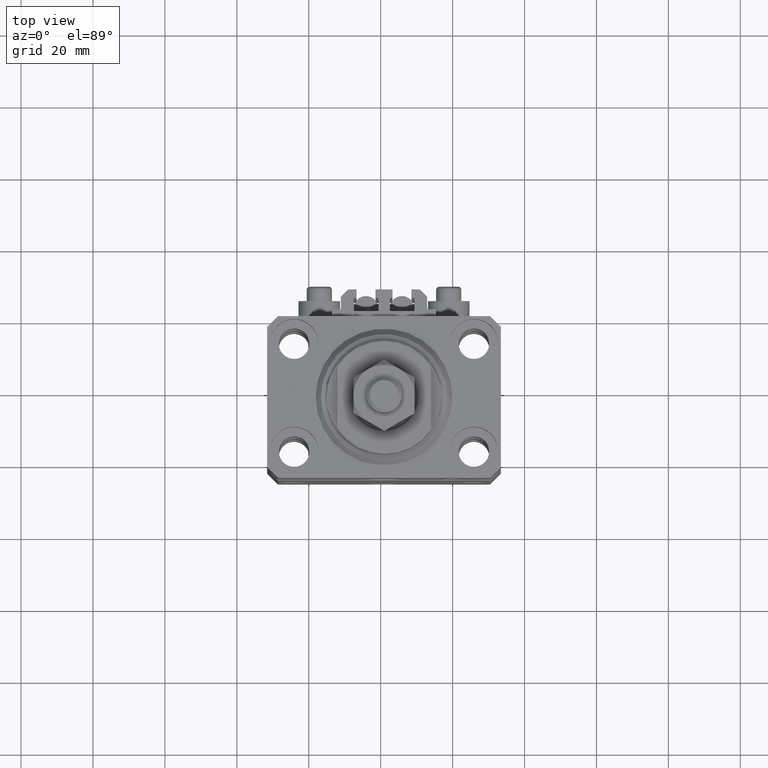
[diagram: clean part render]
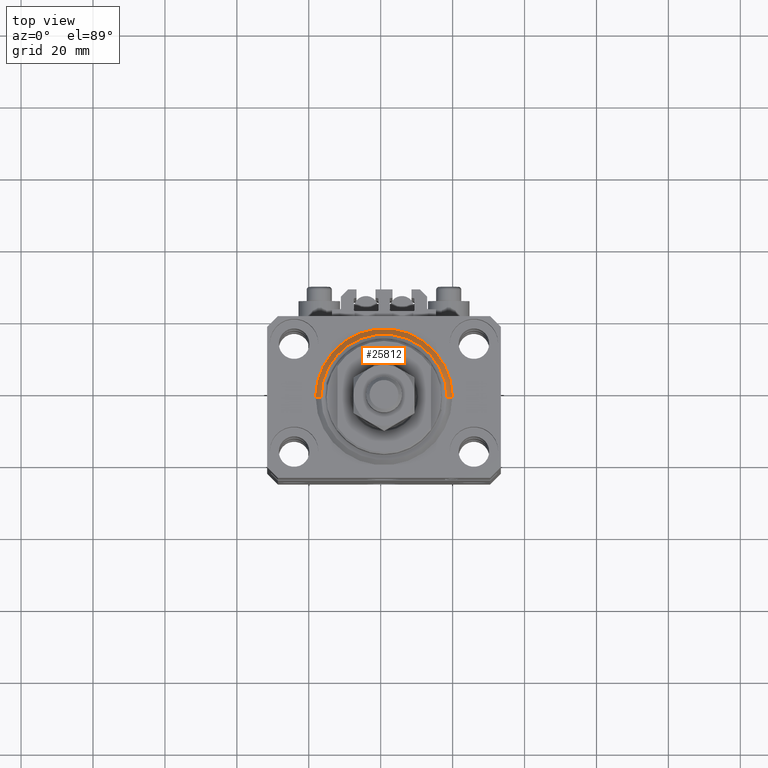
[diagram: same view with one face highlighted and labeled with its STEP entity id]
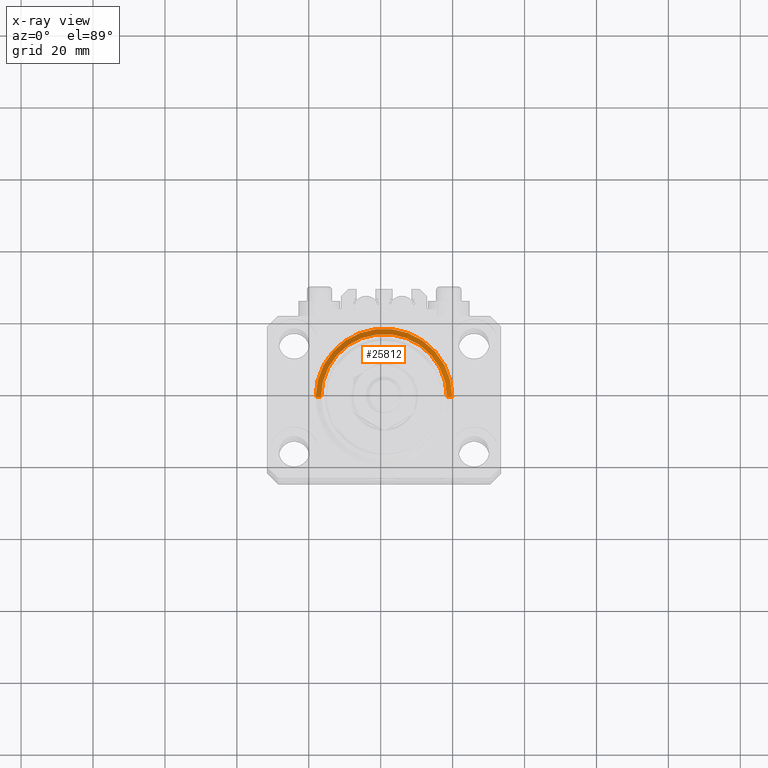
[diagram: x-ray of the same camera — body ghosted, the highlighted face saturated]
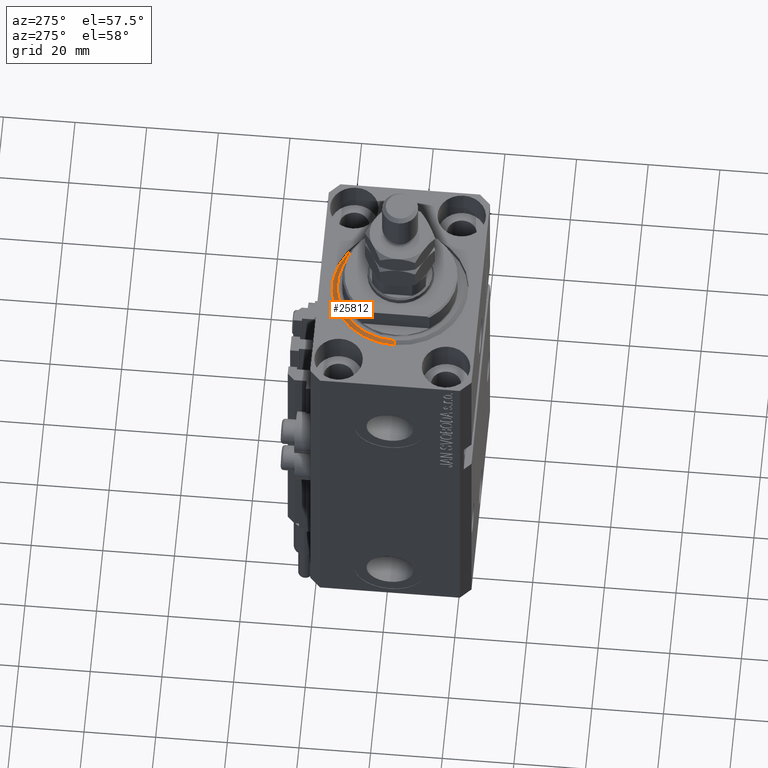
[diagram: same view with one face highlighted and labeled with its STEP entity id]
A machine part, top view. The second image highlights one B-rep face of the part: STEP entity #25812.
The next image is the same camera in x-ray: the body ghosted, the highlighted face saturated — about 0% of this face is hidden behind the body in this view.
A second angle (auxiliary view) of the same face is appended — the face is thin or edge-on in the first view.
In plain terms, the highlighted conical surface has half-angle 45 deg.
Its self-contained STEP definition (entity closure, byte-faithful):
#518 = VECTOR ( 'NONE', #16457, 1000.000000000000000 ) ;
#594 = CARTESIAN_POINT ( 'NONE',  ( -19.00000000000000000, 2.326828918379970970E-15, 1.500000000000004885 ) ) ;
#3260 = VERTEX_POINT ( 'NONE', #37180 ) ;
#4436 = CARTESIAN_POINT ( 'NONE',  ( 19.00000000000000000, 2.326828918379970970E-15, 1.500000000000004885 ) ) ;
#8391 = AXIS2_PLACEMENT_3D ( 'NONE', #11189, #39083, #47013 ) ;
#9324 = CARTESIAN_POINT ( 'NONE',  ( 19.00000000000000000, 0.000000000000000000, 1.500000000000004885 ) ) ;
#9595 = DIRECTION ( 'NONE',  ( 1.000000000000000000, 0.000000000000000000, 0.000000000000000000 ) ) ;
#11189 = CARTESIAN_POINT ( 'NONE',  ( 0.000000000000000000, 0.000000000000000000, 1.500000000000004885 ) ) ;
#11846 = ORIENTED_EDGE ( 'NONE', *, *, #19573, .F. ) ;
#12131 = LINE ( 'NONE', #594, #518 ) ;
#13442 = CARTESIAN_POINT ( 'NONE',  ( 0.000000000000000000, 0.000000000000000000, 1.500000000000004885 ) ) ;
#14954 = AXIS2_PLACEMENT_3D ( 'NONE', #26362, #46072, #37621 ) ;
#14989 = AXIS2_PLACEMENT_3D ( 'NONE', #13442, #47756, #9595 ) ;
#16457 = DIRECTION ( 'NONE',  ( -0.7071067811865483499, 8.659560562354943952E-17, 0.7071067811865467956 ) ) ;
#18127 = VECTOR ( 'NONE', #28768, 1000.000000000000000 ) ;
#18195 = EDGE_CURVE ( 'NONE', #29699, #23301, #12131, .T. ) ;
#18201 = CIRCLE ( 'NONE', #14954, 17.49999999999999289 ) ;
#19573 = EDGE_CURVE ( 'NONE', #3260, #47022, #40294, .T. ) ;
#20615 = CARTESIAN_POINT ( 'NONE',  ( -17.49999999999999289, 2.234980408443919215E-15, 0.000000000000000000 ) ) ;
#23301 = VERTEX_POINT ( 'NONE', #35449 ) ;
#24791 = EDGE_CURVE ( 'NONE', #47022, #23301, #27184, .T. ) ;
#25248 = EDGE_CURVE ( 'NONE', #29699, #3260, #18201, .T. ) ;
#25812 = ADVANCED_FACE ( 'NONE', ( #48503 ), #46036, .T. ) ;
#26059 = EDGE_LOOP ( 'NONE', ( #44199, #28693, #27050, #11846 ) ) ;
#26362 = CARTESIAN_POINT ( 'NONE',  ( 0.000000000000000000, 0.000000000000000000, 0.000000000000000000 ) ) ;
#27050 = ORIENTED_EDGE ( 'NONE', *, *, #24791, .F. ) ;
#27184 = CIRCLE ( 'NONE', #8391, 19.00000000000000000 ) ;
#28693 = ORIENTED_EDGE ( 'NONE', *, *, #18195, .T. ) ;
#28768 = DIRECTION ( 'NONE',  ( 0.7071067811865483499, 0.000000000000000000, 0.7071067811865467956 ) ) ;
#29699 = VERTEX_POINT ( 'NONE', #20615 ) ;
#35449 = CARTESIAN_POINT ( 'NONE',  ( -19.00000000000000000, 0.000000000000000000, 1.500000000000004885 ) ) ;
#37180 = CARTESIAN_POINT ( 'NONE',  ( 17.49999999999999289, 0.000000000000000000, 0.000000000000000000 ) ) ;
#37621 = DIRECTION ( 'NONE',  ( 1.000000000000000000, 0.000000000000000000, 0.000000000000000000 ) ) ;
#39083 = DIRECTION ( 'NONE',  ( -0.000000000000000000, -0.000000000000000000, 1.000000000000000000 ) ) ;
#40294 = LINE ( 'NONE', #9324, #18127 ) ;
#44199 = ORIENTED_EDGE ( 'NONE', *, *, #25248, .F. ) ;
#46036 = CONICAL_SURFACE ( 'NONE', #14989, 19.00000000000000000, 0.7853981633974492782 ) ;
#46072 = DIRECTION ( 'NONE',  ( -0.000000000000000000, -0.000000000000000000, -1.000000000000000000 ) ) ;
#47013 = DIRECTION ( 'NONE',  ( 1.000000000000000000, 0.000000000000000000, 0.000000000000000000 ) ) ;
#47022 = VERTEX_POINT ( 'NONE', #4436 ) ;
#47756 = DIRECTION ( 'NONE',  ( -0.000000000000000000, -0.000000000000000000, 1.000000000000000000 ) ) ;
#48503 = FACE_OUTER_BOUND ( 'NONE', #26059, .T. ) ;